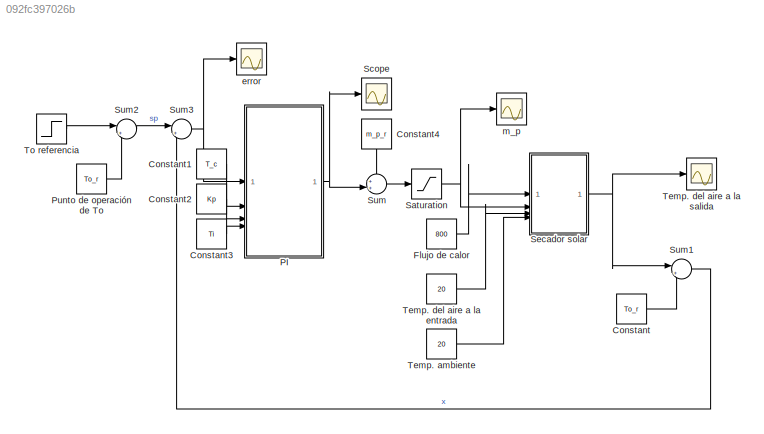
MODEL slx_092fc397026b
KIND model
CONFIG AbsTol = auto
CONFIG EnableMultiTasking = off
CONFIG FixedStep = auto
CONFIG MaxStep = auto
CONFIG MinStep = auto
CONFIG RelTol = 1e-3
CONFIG SampleTimeConstraint = Unconstrained
CONFIG SolverName = VariableStepAuto
CONFIG StartTime = 0.0
CONFIG StopTime = 1000
BLOCK [Constant] Constant
  Value = To_r
BLOCK [Constant] Constant1
  Value = T_c
BLOCK [Constant] Constant2
  Value = Kp
BLOCK [Constant] Constant3
  Value = Ti
BLOCK [Constant] Constant4
  NameLocation = left
  Value = m_p_r
BLOCK [Constant] Flujo de calor
  Value = 800
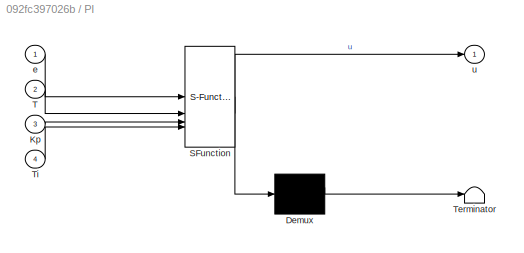
BLOCK [SubSystem] PI
  ErrorFcn = Stateflow.Translate.translate
  PermitHierarchicalResolution = ExplicitOnly
  SFBlockType = MATLAB Function
  SystemSampleTime = T_c
  TreatAsAtomicUnit = on
BLOCK [Demux] PI/ Demux 
  Outputs = 1
BLOCK [S-Function] PI/ SFunction 
  EnableBusSupport = on
  FunctionName = sf_sfun
  PortCounts = [4 2]
  SFcnIsStateOwnerBlock = off
  SFunctionDeploymentMode = off
  Tag = Stateflow S-Function 1
BLOCK [Terminator] PI/ Terminator 
BLOCK [Inport] PI/Kp
  Port = 3
BLOCK [Inport] PI/T
  Port = 2
BLOCK [Inport] PI/Ti
  Port = 4
BLOCK [Inport] PI/e
BLOCK [Outport] PI/u
BLOCK [Constant] Punto de operación de To
  Value = To_r
BLOCK [Saturate] Saturation
  LowerLimit = 0
  UpperLimit = 0.1
BLOCK [Scope] Scope
  Floating = off
  NumInputPorts = 1
  ScopeSpecificationString = Simulink.scopes.TimeScopeBlockCfg('CurrentConfiguration', extmgr.ConfigurationSet(extmgr.Configuration('Core','General UI',true),extmgr.Configuration('Core','Source UI',true),extmgr.Configuration('Sources','WiredSimulink',true,'DataLoggingVariableName','ScopeData1'),extmgr.Configuration('Visuals','Time Domain',true,'SerializedDisplays',{struct('MinYLimReal','-0.05332','MaxYLimReal','0.03009','YLab...<+1483ch>
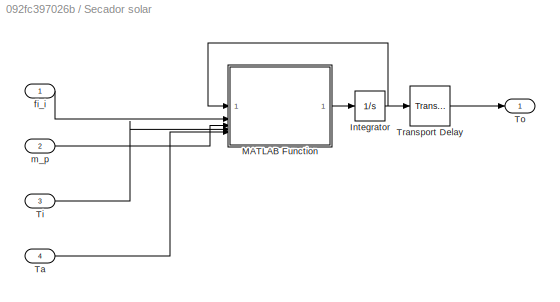
BLOCK [SubSystem] Secador solar
BLOCK [Integrator] Secador solar/Integrator
  InitialCondition = 20
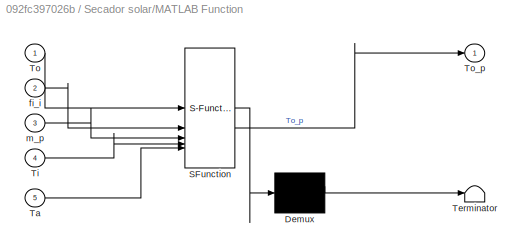
BLOCK [SubSystem] Secador solar/MATLAB Function
  ErrorFcn = Stateflow.Translate.translate
  PermitHierarchicalResolution = ExplicitOnly
  SFBlockType = MATLAB Function
  TreatAsAtomicUnit = on
BLOCK [Demux] Secador solar/MATLAB Function/ Demux 
  Outputs = 1
BLOCK [S-Function] Secador solar/MATLAB Function/ SFunction 
  EnableBusSupport = on
  FunctionName = sf_sfun
  PortCounts = [5 2]
  SFcnIsStateOwnerBlock = off
  SFunctionDeploymentMode = off
  Tag = Stateflow S-Function 2
BLOCK [Terminator] Secador solar/MATLAB Function/ Terminator 
BLOCK [Inport] Secador solar/MATLAB Function/Ta
  Port = 5
BLOCK [Inport] Secador solar/MATLAB Function/Ti
  Port = 4
BLOCK [Inport] Secador solar/MATLAB Function/To
BLOCK [Outport] Secador solar/MATLAB Function/To_p
BLOCK [Inport] Secador solar/MATLAB Function/fi_i
  Port = 2
BLOCK [Inport] Secador solar/MATLAB Function/m_p
  Port = 3
BLOCK [Inport] Secador solar/Ta
  Port = 4
BLOCK [Inport] Secador solar/Ti
  Port = 3
BLOCK [Outport] Secador solar/To
BLOCK [TransportDelay] Secador solar/Transport Delay
  DelayTime = 10
  InitialOutput = 20
BLOCK [Inport] Secador solar/fi_i
BLOCK [Inport] Secador solar/m_p
  Port = 2
BLOCK [Sum] Sum
  Inputs = ++|
BLOCK [Sum] Sum1
  Inputs = |+-
BLOCK [Sum] Sum2
  Inputs = |+-
BLOCK [Sum] Sum3
  Inputs = |+-
BLOCK [Constant] Temp. ambiente
  Value = 20
BLOCK [Constant] Temp. del aire a la entrada
  Value = 20
BLOCK [Scope] Temp. del aire a la salida
  Floating = off
  NumInputPorts = 1
  ScopeSpecificationString = Simulink.scopes.TimeScopeBlockCfg('CurrentConfiguration', extmgr.ConfigurationSet(extmgr.Configuration('Core','General UI',true),extmgr.Configuration('Core','Source UI',true),extmgr.Configuration('Sources','WiredSimulink',true),extmgr.Configuration('Visuals','Time Domain',true,'SerializedDisplays',{struct('MinYLimReal','36.70433','MaxYLimReal','62.77435','YLabelReal','','MinYLimMag','36.70433','Ma...<+1921ch>
BLOCK [Step] To referencia
  After = 40
  Before = 60
  SampleTime = 0
  Time = 500
BLOCK [Scope] error
  Floating = off
  NumInputPorts = 1
  ScopeSpecificationString = Simulink.scopes.TimeScopeBlockCfg('CurrentConfiguration', extmgr.ConfigurationSet(extmgr.Configuration('Core','General UI',true),extmgr.Configuration('Core','Source UI',true),extmgr.Configuration('Sources','WiredSimulink',true,'DataLoggingVariableName','ScopeData3'),extmgr.Configuration('Visuals','Time Domain',true,'SerializedDisplays',{struct('MinYLimReal','-49.96446','MaxYLimReal','49.99605','YL...<+1791ch>
BLOCK [Scope] m_p
  Floating = off
  NumInputPorts = 1
  ScopeSpecificationString = Simulink.scopes.TimeScopeBlockCfg('CurrentConfiguration', extmgr.ConfigurationSet(extmgr.Configuration('Core','General UI',true),extmgr.Configuration('Core','Source UI',true),extmgr.Configuration('Sources','WiredSimulink',true,'DataLoggingVariableName','ScopeData2'),extmgr.Configuration('Visuals','Time Domain',true,'SerializedDisplays',{struct('MinYLimReal','-0.00522','MaxYLimReal','0.04697','YLab...<+1634ch>
LINE Constant1:1 -> PI:2
LINE Constant2:1 -> PI:3
LINE Constant3:1 -> PI:4
LINE Constant4:1 -> Sum:1
LINE Constant:1 -> Sum1:2
LINE Flujo de calor:1 -> Secador solar:1
NET PI:1 -> Scope:1, Sum:2
LINE Punto de operación de To:1 -> Sum2:2
NET Saturation:1 -> Secador solar:2, m_p:1
NET Secador solar/Integrator:1 -> Secador solar/MATLAB Function:1, Secador solar/Transport Delay:1
LINE Secador solar/MATLAB Function:1 -> Secador solar/Integrator:1
LINE Secador solar/Ta:1 -> Secador solar/MATLAB Function:5
LINE Secador solar/Ti:1 -> Secador solar/MATLAB Function:4
LINE Secador solar/Transport Delay:1 -> Secador solar/To:1
LINE Secador solar/fi_i:1 -> Secador solar/MATLAB Function:2
LINE Secador solar/m_p:1 -> Secador solar/MATLAB Function:3
NET Secador solar:1 -> Sum1:1, Temp. del aire a la salida:1
LINE Sum1:1 -> Sum3:2
LINE Sum2:1 -> Sum3:1
NET Sum3:1 -> PI:1, error:1
LINE Sum:1 -> Saturation:1
LINE Temp. ambiente:1 -> Secador solar:4
LINE Temp. del aire a la entrada:1 -> Secador solar:3
LINE To referencia:1 -> Sum2:1
note: NET lines group one-source signal fan-out (src -> all destinations, sorted); 1:1 wires keep LINE
CHART PI states=1 transitions=1
  STATE_LABEL 'eML_blk_kernel()'
  STATE_LABEL 'SCRIPT:\nfunction u = fcn(e,T, Kp, Ti)\n\npersistent I_ant;\n\nif isempty(I_ant),\n    I_ant=0;\nend;\n\nI = I_ant + e*T;\nu = Kp*(e+ (1/Ti)*I);\n\nI_ant = I;\n\n'
CHART Secador solar/MATLAB Function states=1 transitions=1
  STATE_LABEL 'eML_blk_kernel()'
  STATE_LABEL 'SCRIPT:\nfunction To_p = fcn(To,fi_i,m_p,Ti,Ta)\n\n%Simula el calentamiento del aire en un secador solar\n%To: temperatura del aire a la salida (°C)\n%Ti: temperatura del aire a la entrada (°C)\n%V: voltaje aplicado a la resistencia\n%   eléctrica del calentador (volt)\n%m_p: flujo de masa del aire que ingresa y sale del\n%     secador solar (Kg/seg)\n%Ta: temperatura ambiente (°C)\n\nM = 0.9; %masa del aire ...<+231ch>'
CHART  states=0 transitions=0
CHART  states=0 transitions=0
